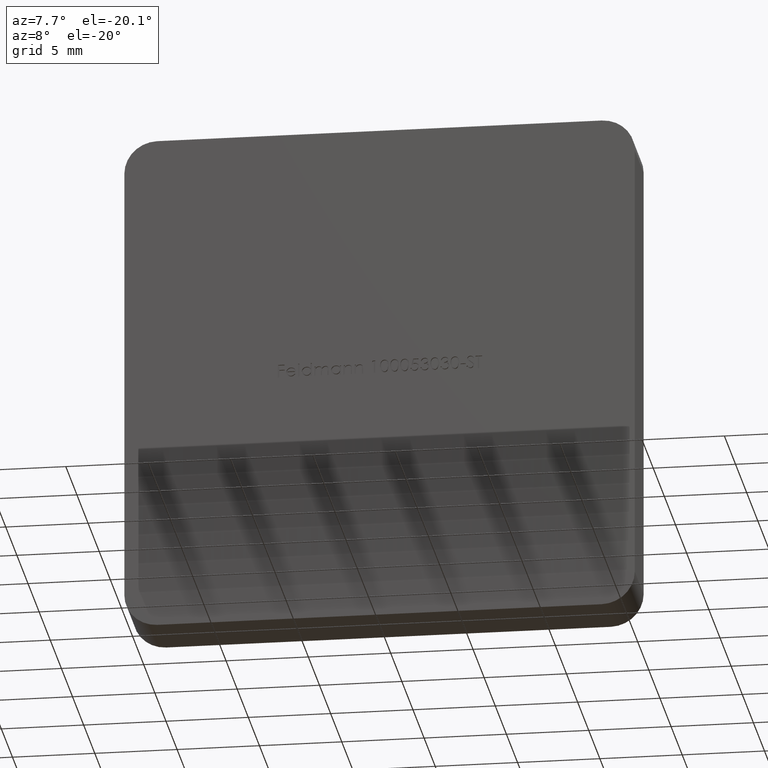
[diagram: clean part render]
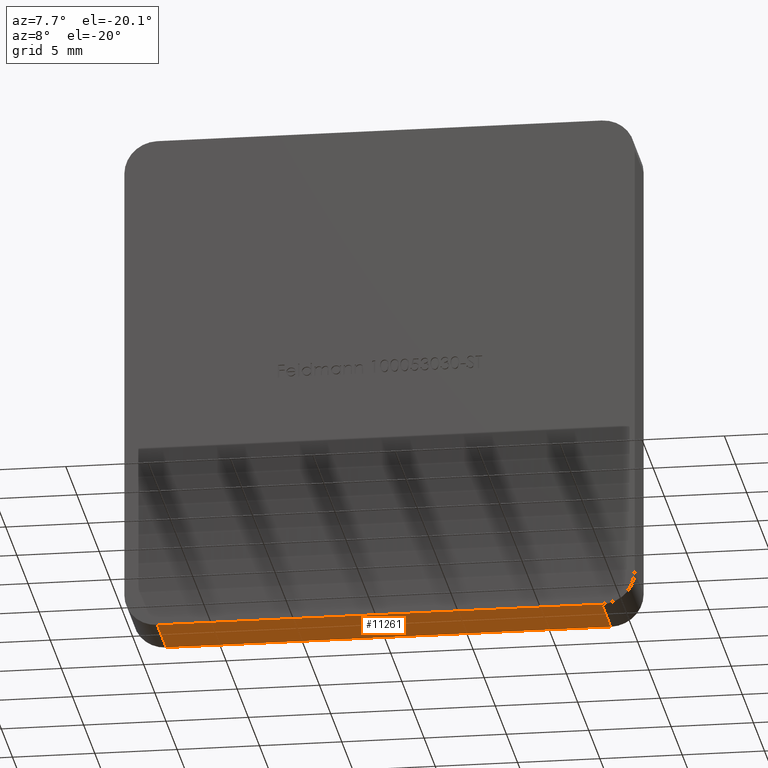
[diagram: same view with one face highlighted and labeled with its STEP entity id]
A machine part, auxiliary view. The second image highlights one B-rep face of the part: STEP entity #11261.
In plain terms, the highlighted planar face has unit normal (0, 0, 1).
Its self-contained STEP definition (entity closure, byte-faithful):
#845 = LINE ( 'NONE', #6970, #1663 ) ;
#1525 = CARTESIAN_POINT ( 'NONE',  ( -13.50000000000000000, 0.000000000000000000, -15.50000000000000000 ) ) ;
#1663 = VECTOR ( 'NONE', #9594, 1000.000000000000000 ) ;
#1696 = LINE ( 'NONE', #10877, #2911 ) ;
#2087 = CARTESIAN_POINT ( 'NONE',  ( -15.50000000000000000, 0.000000000000000000, -15.50000000000000000 ) ) ;
#2300 = ORIENTED_EDGE ( 'NONE', *, *, #10778, .F. ) ;
#2911 = VECTOR ( 'NONE', #8161, 1000.000000000000000 ) ;
#3395 = DIRECTION ( 'NONE',  ( -1.000000000000000000, -0.000000000000000000, -0.000000000000000000 ) ) ;
#3535 = CARTESIAN_POINT ( 'NONE',  ( 13.50000000000000178, 4.000000000000000000, -15.50000000000000000 ) ) ;
#3995 = VERTEX_POINT ( 'NONE', #1525 ) ;
#4275 = EDGE_CURVE ( 'NONE', #15090, #3995, #6591, .T. ) ;
#4489 = DIRECTION ( 'NONE',  ( 0.000000000000000000, -1.000000000000000000, 0.000000000000000000 ) ) ;
#4819 = EDGE_LOOP ( 'NONE', ( #14826, #13353, #2300, #14608 ) ) ;
#6591 = LINE ( 'NONE', #2087, #8798 ) ;
#6728 = FACE_OUTER_BOUND ( 'NONE', #4819, .T. ) ;
#6801 = VERTEX_POINT ( 'NONE', #3535 ) ;
#6865 = DIRECTION ( 'NONE',  ( 1.000000000000000000, 0.000000000000000000, -0.000000000000000000 ) ) ;
#6970 = CARTESIAN_POINT ( 'NONE',  ( -13.50000000000000000, 4.000000000000000000, -15.50000000000000000 ) ) ;
#7005 = CARTESIAN_POINT ( 'NONE',  ( -13.50000000000000000, 4.000000000000000000, -15.50000000000000000 ) ) ;
#7822 = VECTOR ( 'NONE', #4489, 1000.000000000000000 ) ;
#8161 = DIRECTION ( 'NONE',  ( -1.000000000000000000, -0.000000000000000000, -0.000000000000000000 ) ) ;
#8798 = VECTOR ( 'NONE', #3395, 1000.000000000000000 ) ;
#9255 = DIRECTION ( 'NONE',  ( 0.000000000000000000, 0.000000000000000000, 1.000000000000000000 ) ) ;
#9594 = DIRECTION ( 'NONE',  ( -0.000000000000000000, 1.000000000000000000, -0.000000000000000000 ) ) ;
#10778 = EDGE_CURVE ( 'NONE', #6801, #14036, #1696, .T. ) ;
#10877 = CARTESIAN_POINT ( 'NONE',  ( -15.50000000000000000, 4.000000000000000000, -15.50000000000000000 ) ) ;
#11261 = ADVANCED_FACE ( 'NONE', ( #6728 ), #15938, .F. ) ;
#12247 = LINE ( 'NONE', #15956, #7822 ) ;
#12436 = AXIS2_PLACEMENT_3D ( 'NONE', #14418, #9255, #6865 ) ;
#13233 = EDGE_CURVE ( 'NONE', #3995, #14036, #845, .T. ) ;
#13353 = ORIENTED_EDGE ( 'NONE', *, *, #13233, .T. ) ;
#14036 = VERTEX_POINT ( 'NONE', #7005 ) ;
#14418 = CARTESIAN_POINT ( 'NONE',  ( -15.50000000000000000, 4.000000000000000000, -15.50000000000000000 ) ) ;
#14608 = ORIENTED_EDGE ( 'NONE', *, *, #16361, .T. ) ;
#14826 = ORIENTED_EDGE ( 'NONE', *, *, #4275, .T. ) ;
#15090 = VERTEX_POINT ( 'NONE', #15110 ) ;
#15110 = CARTESIAN_POINT ( 'NONE',  ( 13.50000000000000178, 0.000000000000000000, -15.50000000000000000 ) ) ;
#15938 = PLANE ( 'NONE',  #12436 ) ;
#15956 = CARTESIAN_POINT ( 'NONE',  ( 13.50000000000000178, 4.000000000000000000, -15.50000000000000000 ) ) ;
#16361 = EDGE_CURVE ( 'NONE', #6801, #15090, #12247, .T. ) ;